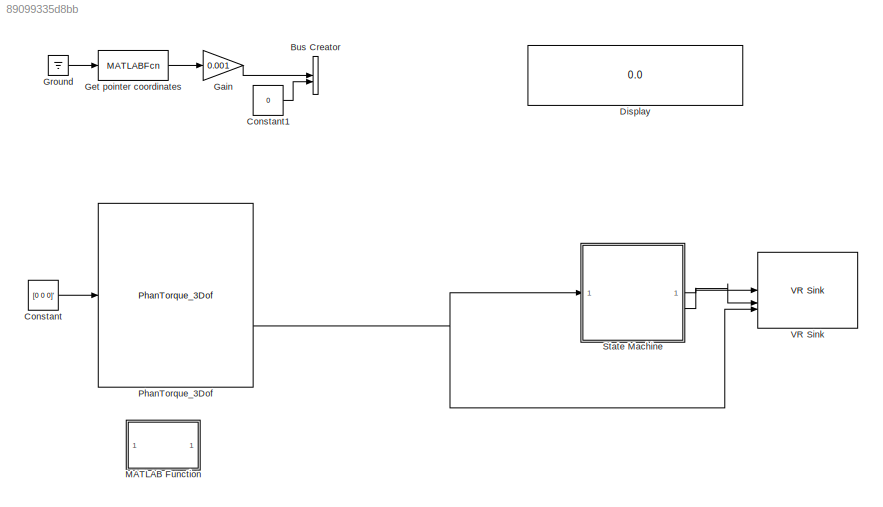
MODEL slx_89099335d8bb
KIND model
CONFIG AbsTol = auto
CONFIG EnableMultiTasking = off
CONFIG FixedStep = 0.001
CONFIG MaxStep = auto
CONFIG MinStep = auto
CONFIG RelTol = 1e-3
CONFIG SampleTimeConstraint = Unconstrained
CONFIG SolverName = FixedStepDiscrete
CONFIG StartTime = 0.0
CONFIG StopTime = inf
BLOCK [BusCreator] Bus Creator
  Commented = on
  DisplayOption = bar
  InheritFromInputs = on
  Inputs = 2
BLOCK [Constant] Constant
  Value = [0 0 0]'
BLOCK [Constant] Constant1
  Commented = on
  Value = 0
BLOCK [Display] Display
  Commented = on
  Decimation = 1
BLOCK [Gain] Gain
  Commented = on
  Gain = 0.001
BLOCK [MATLABFcn] Get pointer coordinates
  Commented = on
  MATLABFcn = get(0, 'PointerLocation') - [860 540]
  OutputDimensions = 2
BLOCK [Ground] Ground
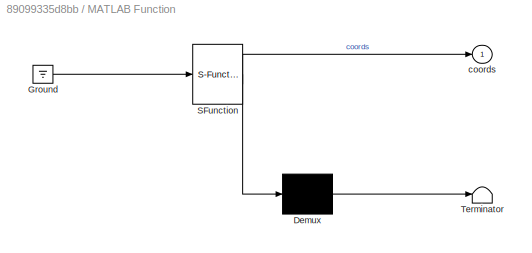
BLOCK [SubSystem] MATLAB Function
  ErrorFcn = Stateflow.Translate.translate
  PermitHierarchicalResolution = ExplicitOnly
  SFBlockType = MATLAB Function
  TreatAsAtomicUnit = on
BLOCK [Demux] MATLAB Function/ Demux 
  Outputs = 1
BLOCK [Ground] MATLAB Function/ Ground 
BLOCK [S-Function] MATLAB Function/ SFunction 
  EnableBusSupport = on
  FunctionName = sf_sfun
  PortCounts = [1 2]
  SFcnIsStateOwnerBlock = off
  SFunctionDeploymentMode = off
  Tag = Stateflow S-Function 2
BLOCK [Terminator] MATLAB Function/ Terminator 
BLOCK [Outport] MATLAB Function/coords
BLOCK [Reference] PhanTorque_3Dof  REF=PhanTorque_3Dof_Library_64Bits/PhanTorque_3Dof
  SourceBlock = PhanTorque_3Dof_Library_64Bits/PhanTorque_3Dof
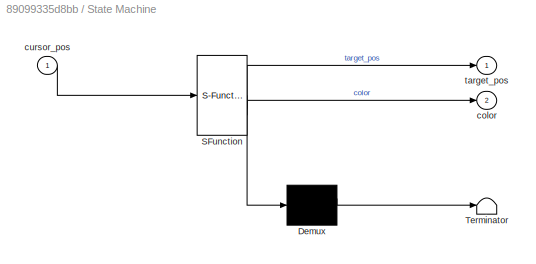
BLOCK [SubSystem] State Machine
  ErrorFcn = Stateflow.Translate.translate
  PermitHierarchicalResolution = ExplicitOnly
  SFBlockType = Chart
  TreatAsAtomicUnit = on
BLOCK [Demux] State Machine/ Demux 
  Outputs = 1
BLOCK [S-Function] State Machine/ SFunction 
  EnableBusSupport = on
  FunctionName = sf_sfun
  PortCounts = [1 3]
  SFcnIsStateOwnerBlock = off
  SFunctionDeploymentMode = off
  Tag = Stateflow S-Function 1
BLOCK [Terminator] State Machine/ Terminator 
BLOCK [Outport] State Machine/color
  Port = 2
BLOCK [Inport] State Machine/cursor_pos
BLOCK [Outport] State Machine/target_pos
BLOCK [Reference] VR Sink  REF=vrlib/VR Sink
  InstantiateOnLoad = on
  SourceBlock = vrlib/VR Sink
  SourceType = Virtual Reality Sink
LINE Constant1:1 -> Bus Creator:2
LINE Constant:1 -> PhanTorque_3Dof:1
LINE Gain:1 -> Bus Creator:1
LINE Get pointer coordinates:1 -> Gain:1
LINE Ground:1 -> Get pointer coordinates:1
NET PhanTorque_3Dof:2 -> State Machine:1, VR Sink:3
LINE State Machine:1 -> VR Sink:1
LINE State Machine:2 -> VR Sink:2
note: NET lines group one-source signal fan-out (src -> all destinations, sorted); 1:1 wires keep LINE
CHART State Machine states=14 transitions=16
  STATE_LABEL 'Initializing\nentry:\ncounter = 0;\ntime = 0;\ncolor = [0 1 1];\nradius = 0.1;\n'
  STATE_LABEL "HOME2\ntarget_pos=[0,0,0]';\ntarget_color=[1 0 0];\n"
  STATE_LABEL 'WAIT_HOME1\n'
  STATE_LABEL 'REACHING2\n% Calcola un target random sul cerchio di raggio 0.1m (10cm)\ntheta = rand() * 2 * pi;\ntarget_pos = [0.1 * cos(theta); 0.1 * sin(theta); 0];'
  STATE_LABEL 'INIT\nentry:\ncounter = 0;\nradius = 0.1;\ntarget_pos = [0 0 0];\ncolor = [1 0 0]; % Rosso'
  STATE_LABEL 'FEEDBACK2\ntarget_color = [0 1 0];  % Diventa Verde'
  STATE_LABEL 'New_target\nentry:\n'
  STATE_LABEL 'Finish1'
  STATE_LABEL 'GO_HOME\nentry:\ntarget_pos = [0 0 0];\ncolor = [1 0 0]; % Rosso'
  STATE_LABEL 'HOLD_HOME\ncolor = [0 1 0]; % Verde (Holding)'
  STATE_LABEL "CALC_NEW_TARGET\n% Calcola l'angolo: 0, 45, 90...\nentry:\ntheta = randi(8) * (pi/4);\ntarget_pos(1) = radius * cos(theta);\ntarget_pos(2) = radius * sin(theta);\ntarget_pos(3) = 0;\ncolor = [1 0 1]; % Magenta target attivo)"
  STATE_LABEL 'REACHING\nentry:\ncolor = [1 0 1]; % Forza Magenta'
  STATE_LABEL 'HOLD_TARGET\nentry:\ncolor = [0 1 0]; % Verde (Preso!)'
  STATE_LABEL 'FINISH\nentry:\ntarget_pos = [0 0 0];\ncolor = [0 0 1]; % Blu (Finito tutto)'
CHART MATLAB Function states=1 transitions=1
  STATE_LABEL 'eML_blk_kernel()'
  STATE_LABEL "SCRIPT:\n% function coords = get_pointer_coordinates\n%     coords = get(0, 'PointerLocation'); \n\n\n\nfunction coords = get_pointer_coordinates\n    % Diciamo a Simulink che 'get' è una funzione esterna\n    coder.extrinsic('get');\n    \n    % Dobbiamo inizializzare la variabile (altrimenti Simulink non sa quanto è grande)\n    temp = zeros(1, 2); \n    \n    % Leggiamo il mouse\n    temp = get(0, 'PointerLo...<+175ch>"
CHART  states=0 transitions=0
CHART  states=0 transitions=0
